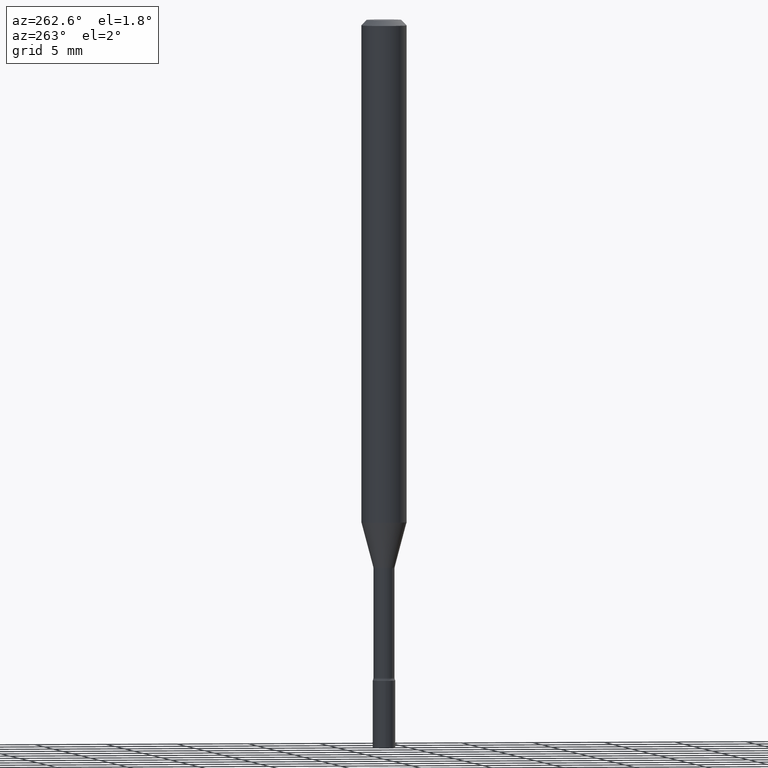
[diagram: clean part render]
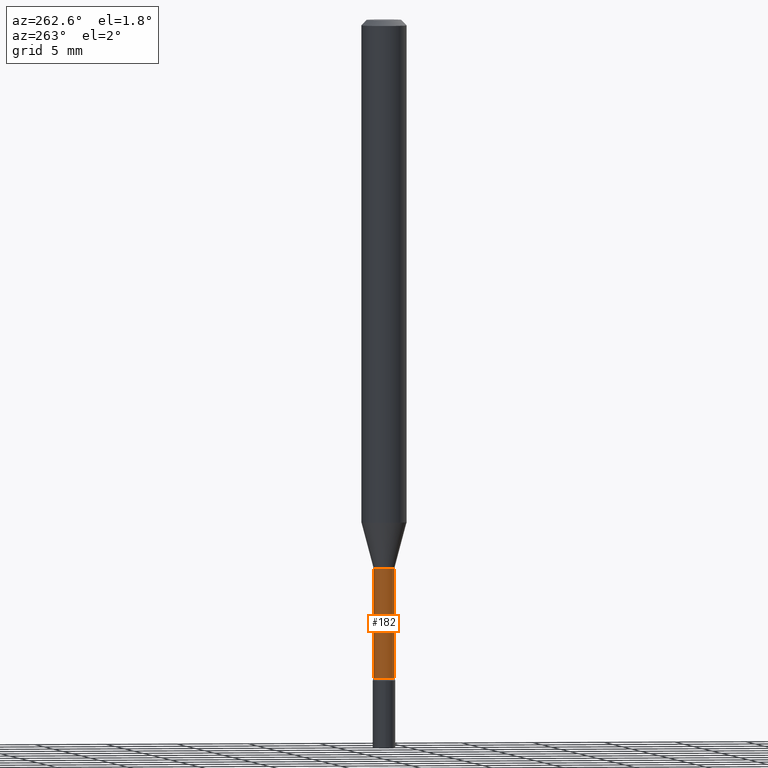
[diagram: same view with one face highlighted and labeled with its STEP entity id]
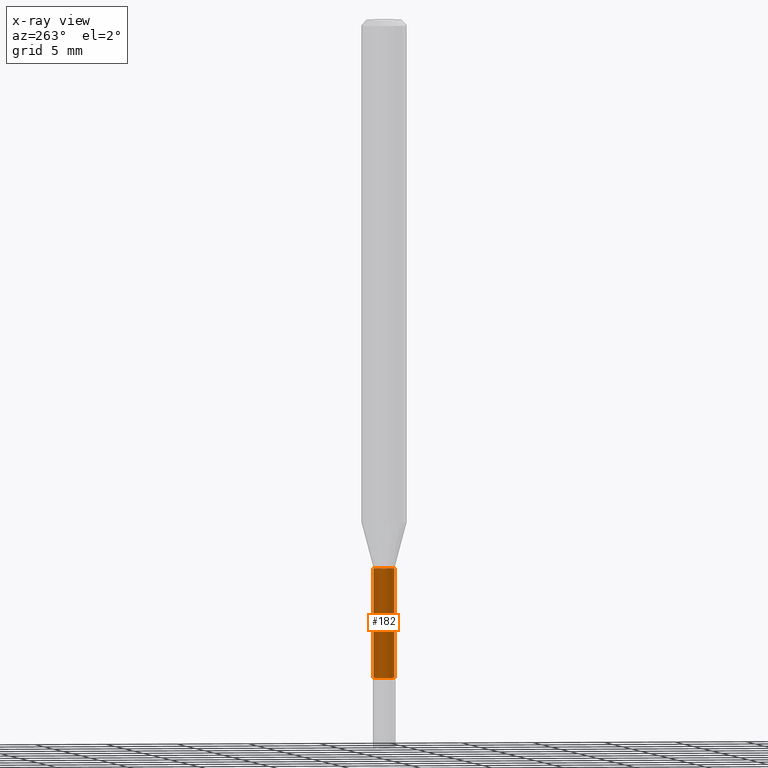
[diagram: x-ray of the same camera — body ghosted, the highlighted face saturated]
A machine part, auxiliary view. The second image highlights one B-rep face of the part: STEP entity #182.
The next image is the same camera in x-ray: the body ghosted, the highlighted face saturated — about 0% of this face is hidden behind the body in this view.
In plain terms, the highlighted cylindrical surface (edge-blend (fillet) strip) has radius 0.7404 mm, axis along (-0, 0, 1).
Its self-contained STEP definition (entity closure, byte-faithful):
#3 = VERTEX_POINT ( 'NONE', #327 ) ;
#14 = DIRECTION ( 'NONE',  ( -6.982962677686266711E-15, -1.000000000000000000, 0.000000000000000000 ) ) ;
#17 = CARTESIAN_POINT ( 'NONE',  ( 4.418432265018427708E-29, -6.308351660805017310E-15, -1.806783525791634704 ) ) ;
#26 = CARTESIAN_POINT ( 'NONE',  ( 2.071232074740693438E-16, 0.02915000000000002311, -1.017766922752389249E-16 ) ) ;
#30 = LINE ( 'NONE', #418, #362 ) ;
#72 = DIRECTION ( 'NONE',  ( -2.445468536737133447E-29, 3.491481724708021844E-15, 1.000000000000000000 ) ) ;
#75 = CARTESIAN_POINT ( 'NONE',  ( 0.000000000000000000, 0.000000000000000000, 0.000000000000000000 ) ) ;
#96 = DIRECTION ( 'NONE',  ( -2.445468536737133447E-29, 3.491481724708021844E-15, 1.000000000000000000 ) ) ;
#112 = CYLINDRICAL_SURFACE ( 'NONE', #151, 0.02915000000000002311 ) ;
#115 = ORIENTED_EDGE ( 'NONE', *, *, #228, .T. ) ;
#118 = EDGE_CURVE ( 'NONE', #483, #3, #30, .T. ) ;
#136 = CARTESIAN_POINT ( 'NONE',  ( 3.682813959862141921E-29, -5.258083448300944094E-15, -1.505974787463811193 ) ) ;
#144 = FACE_OUTER_BOUND ( 'NONE', #247, .T. ) ;
#151 = AXIS2_PLACEMENT_3D ( 'NONE', #75, #72, #400 ) ;
#154 = CARTESIAN_POINT ( 'NONE',  ( -2.035533620545107573E-16, -0.02915000000000635139, -1.806783525791634704 ) ) ;
#182 = ADVANCED_FACE ( 'NONE', ( #144 ), #112, .T. ) ;
#191 = DIRECTION ( 'NONE',  ( -2.445468536737133447E-29, 3.491481724708022239E-15, 1.000000000000000000 ) ) ;
#206 = VECTOR ( 'NONE', #191, 39.37007874015748143 ) ;
#228 = EDGE_CURVE ( 'NONE', #434, #483, #301, .T. ) ;
#230 = CIRCLE ( 'NONE', #386, 0.02915000000000000577 ) ;
#239 = ORIENTED_EDGE ( 'NONE', *, *, #118, .T. ) ;
#247 = EDGE_LOOP ( 'NONE', ( #268, #115, #239, #449 ) ) ;
#256 = CARTESIAN_POINT ( 'NONE',  ( 2.136957277798946103E-16, 0.02914999999999373301, -1.806783525791634704 ) ) ;
#267 = EDGE_CURVE ( 'NONE', #287, #3, #230, .T. ) ;
#268 = ORIENTED_EDGE ( 'NONE', *, *, #421, .F. ) ;
#287 = VERTEX_POINT ( 'NONE', #288 ) ;
#288 = CARTESIAN_POINT ( 'NONE',  ( 2.071232074741134953E-16, 0.02914999999999474956, -1.505974787463811193 ) ) ;
#301 = CIRCLE ( 'NONE', #453, 0.02915000000000004046 ) ;
#327 = CARTESIAN_POINT ( 'NONE',  ( -2.035533620545178817E-16, -0.02915000000000526545, -1.505974787463811193 ) ) ;
#328 = DIRECTION ( 'NONE',  ( -2.445468536737133447E-29, 3.491481724708021844E-15, 1.000000000000000000 ) ) ;
#361 = DIRECTION ( 'NONE',  ( -6.982962677686266711E-15, -1.000000000000000000, 0.000000000000000000 ) ) ;
#362 = VECTOR ( 'NONE', #392, 39.37007874015748143 ) ;
#384 = LINE ( 'NONE', #26, #206 ) ;
#386 = AXIS2_PLACEMENT_3D ( 'NONE', #136, #328, #361 ) ;
#392 = DIRECTION ( 'NONE',  ( -2.445468536737133447E-29, 3.491481724708022239E-15, 1.000000000000000000 ) ) ;
#400 = DIRECTION ( 'NONE',  ( -6.982962677686266711E-15, -1.000000000000000000, 3.491481724708022239E-15 ) ) ;
#418 = CARTESIAN_POINT ( 'NONE',  ( -2.035533620545548349E-16, -0.02915000000000002311, 1.017766922752389249E-16 ) ) ;
#421 = EDGE_CURVE ( 'NONE', #434, #287, #384, .T. ) ;
#434 = VERTEX_POINT ( 'NONE', #256 ) ;
#449 = ORIENTED_EDGE ( 'NONE', *, *, #267, .F. ) ;
#453 = AXIS2_PLACEMENT_3D ( 'NONE', #17, #96, #14 ) ;
#483 = VERTEX_POINT ( 'NONE', #154 ) ;